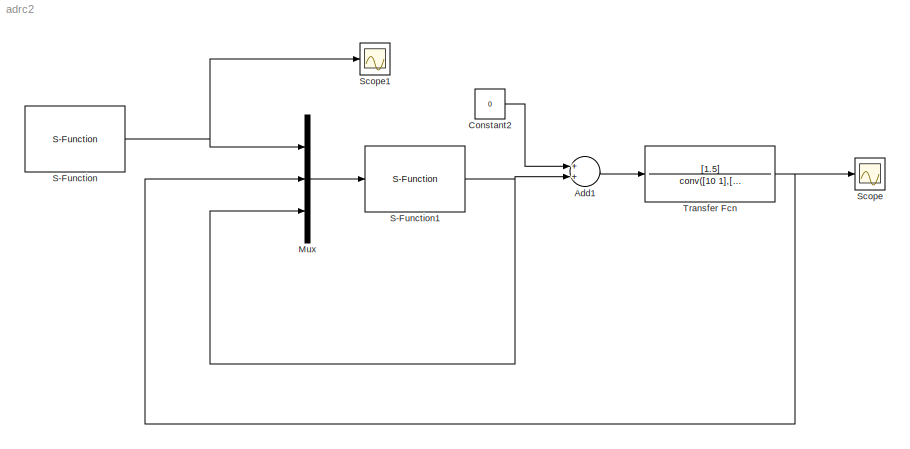
MODEL adrc2
KIND model
BLOCK [Sum] Add1
  InputSameDT = off
  OutDataTypeMode = Inherit via internal rule
  OutScaling = 2^-10
  Ports = [2, 1]
  SampleTime = 0.1
  SaturateOnIntegerOverflow = off
BLOCK [Constant] Constant2
  Value = 0
BLOCK [Mux] Mux
  DisplayOption = bar
  Inputs = 3
  Ports = [3, 1]
BLOCK [S-Function] S-Function
  FunctionName = ReferenceProcess
  MaskCallbackString = ||
  MaskEnableString = on,on,on
  MaskIconFrame = on
  MaskIconOpaque = on
  MaskIconRotate = none
  MaskIconUnits = autoscale
  MaskPromptString = SetPoint|RisingTime|SampleTime
  MaskStyleString = edit,edit,edit
  MaskTabNameString = ,,
  MaskToolTipString = on,on,on
  MaskTunableValueString = on,on,on
  MaskValueString = 1|8|0.1
  MaskVarAliasString = ,,
  MaskVariables = SetPoint=@1;RisingTime=@2;SampleTime=@3;
  MaskVisibilityString = on,on,on
  Parameters = SetPoint, RisingTime,SampleTime
  Ports = [0, 1]
BLOCK [S-Function] S-Function1
  FunctionName = ADRController
  MaskCallbackString = ||||||||||
  MaskEnableString = on,on,on,on,on,on,on,on,on,on,on
  MaskIconFrame = on
  MaskIconOpaque = on
  MaskIconRotate = none
  MaskIconUnits = autoscale
  MaskPromptString = Proportion Coefficient|Derivation Coefficient|Linear Region1 of PID|Proportion Power|Derivation Power|Linear Region2 of Observer|Observer Coefficient1|Observer Coefficient2|Observer Coefficient3|System Gain|Sample Time
  MaskStyleString = edit,edit,edit,edit,edit,edit,edit,edit,edit,edit,edit
  MaskTabNameString = ,,,,,,,,,,
  MaskToolTipString = on,on,on,on,on,on,on,on,on,on,on
  MaskTunableValueString = on,on,on,on,on,on,on,on,on,on,on
  MaskValueString = 100|80|0.2|3/4|3/2|0.5|20|20|30|1.5/100|0.1
  MaskVarAliasString = ,,,,,,,,,,
  MaskVariables = Beta1=@1;Beta2=@2;Delta1=@3;A1=@4;A2=@5;Delta2=@6;Gamma1=@7;Gamma2=@8;Gamma3=@9;b0=@10;SampleTime=@11;
  MaskVisibilityString = on,on,on,on,on,on,on,on,on,on,on
  Parameters = Beta1,Beta2,Delta1,A1,A2,Delta2,Gamma1,Gamma2,Gamma3,b0,SampleTime
  Ports = [1, 1]
BLOCK [Scope] Scope
  DataFormat = StructureWithTime
  LimitDataPoints = off
  NumInputPorts = 1
  Ports = [1]
  YMax = 5e+014
  YMin = -4e+014
BLOCK [Scope] Scope1
  DataFormat = StructureWithTime
  LimitDataPoints = off
  NumInputPorts = 1
  Ports = [1]
  SaveName = ScopeData1
  YMax = 1
  YMin = 2.77556e-017
BLOCK [TransferFcn] Transfer Fcn
  Denominator = conv([10 1],[10 1])
  Numerator = [1.5]
LINE Add1:1 -> Transfer Fcn:1
LINE Constant2:1 -> Add1:1
LINE Mux:1 -> S-Function1:1
NET S-Function1:1 -> Add1:2, Mux:3
NET S-Function:1 -> Mux:1, Scope1:1
NET Transfer Fcn:1 -> Mux:2, Scope:1
note: NET lines group one-source signal fan-out (src -> all destinations, sorted); 1:1 wires keep LINE
